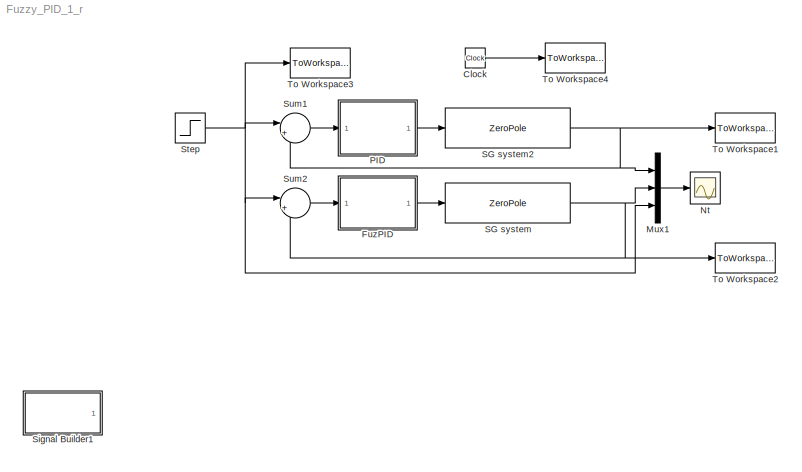
MODEL Fuzzy_PID_1_r
KIND model
BLOCK [Clock] Clock
  Decimation = 10
  SID = 1
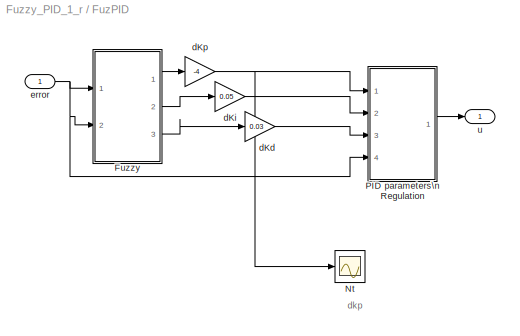
BLOCK [SubSystem] FuzPID
  FunctionWithSeparateData = off
  MaskCallbackString = |||||||
  MaskDisplay = disp('Fuzzy PID')
  MaskEnableString = on,on,on,on,on,on,on,on
  MaskHideContents = off
  MaskIconFrame = on
  MaskIconOpaque = on
  MaskIconRotate = none
  MaskIconUnits = autoscale
  MaskPortRotate = default
  MaskPromptString = Proportional(Kp)|Integral(Ki)|Derivative(Kd)|DeltaProportional(dKp)|DeltaIntegral(dKi)|DeltaDerivative(dKd)|factor of error|factor of de/dt
  MaskStyleString = edit,edit,edit,edit,edit,edit,edit,edit
  MaskToolTipString = on,on,on,on,on,on,on,on
  MaskTunableValueString = on,on,on,on,on,on,on,on
  MaskValueString = 2.5|1.5|0|0.4|0.2|0|0|0.1
  MaskVariables = Kp=@1;Ki=@2;Kd=@3;dKp=@4;dKi=@5;dKd=@6;Ke=@7;Kec=@8;
  MaskVisibilityString = on,on,on,on,on,on,on,on
  MinAlgLoopOccurrences = off
  Opaque = off
  Ports = [1, 1]
  PropExecContextOutsideSubsystem = off
  RTWSystemCode = Auto
  RequestExecContextInheritance = off
  SID = 2
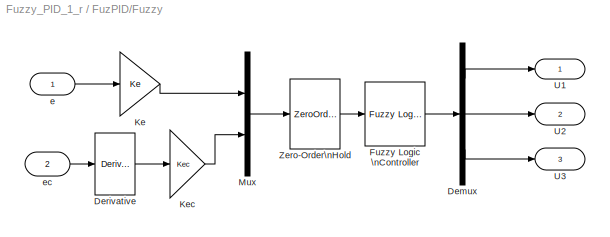
BLOCK [SubSystem] FuzPID/Fuzzy
  FunctionWithSeparateData = off
  MaskCallbackString = |
  MaskDescription = Fuzzy Bolck
  MaskDisplay = disp('Fuzzy')
  MaskEnableString = on,on
  MaskHideContents = off
  MaskIconFrame = on
  MaskIconOpaque = on
  MaskIconRotate = none
  MaskIconUnits = autoscale
  MaskPortRotate = default
  MaskPromptString = factor of error|factor of de/dt
  MaskStyleString = edit,edit
  MaskToolTipString = on,on
  MaskTunableValueString = on,on
  MaskValueString = Ke|Kec
  MaskVariables = Ke=@1;Kec=@2;
  MaskVisibilityString = on,on
  MinAlgLoopOccurrences = off
  Opaque = off
  Ports = [2, 3]
  PropExecContextOutsideSubsystem = off
  RTWSystemCode = Auto
  RequestExecContextInheritance = off
  SID = 4
BLOCK [Demux] FuzPID/Fuzzy/Demux
  DisplayOption = bar
  Outputs = 3
  Ports = [1, 3]
  SID = 7
BLOCK [Derivative] FuzPID/Fuzzy/Derivative
  SID = 8
BLOCK [Reference] FuzPID/Fuzzy/Fuzzy Logic \nController  REF=fuzblock/Fuzzy Logic \nController  (lib defined in mdl_858b3b3e7478)
  FunctionWithSeparateData = off
  GeneratePreprocessorConditionals = off
  Ports = [1, 1]
  RTWMemSecDataConstants = Inherit from model
  RTWMemSecDataInternal = Inherit from model
  RTWMemSecDataParameters = Inherit from model
  RTWMemSecFuncExecute = Inherit from model
  RTWMemSecFuncInitTerm = Inherit from model
  SID = 9
  ShowPortLabels = FromPortIcon
  SourceBlock = fuzblock/Fuzzy Logic \nController
  SourceType = FIS
  SystemSampleTime = -1
  fis = fuzzyPID
BLOCK [Gain] FuzPID/Fuzzy/Ke
  Gain = Ke
  OutDataTypeStr = Inherit: Inherit via internal rule
  ParamDataTypeStr = Inherit: Inherit via internal rule
  SID = 10
  SaturateOnIntegerOverflow = off
BLOCK [Gain] FuzPID/Fuzzy/Kec
  Gain = Kec
  OutDataTypeStr = Inherit: Inherit via internal rule
  ParamDataTypeStr = Inherit: Inherit via internal rule
  SID = 11
  SaturateOnIntegerOverflow = off
BLOCK [Mux] FuzPID/Fuzzy/Mux
  DisplayOption = bar
  Inputs = 2
  Ports = [2, 1]
  SID = 12
BLOCK [Outport] FuzPID/Fuzzy/U1
  IconDisplay = Port number
  SID = 14
BLOCK [Outport] FuzPID/Fuzzy/U2
  IconDisplay = Port number
  Port = 2
  SID = 15
BLOCK [Outport] FuzPID/Fuzzy/U3
  IconDisplay = Port number
  Port = 3
  SID = 16
BLOCK [ZeroOrderHold] FuzPID/Fuzzy/Zero-Order\nHold
  SID = 13
  SampleTime = 0.005
BLOCK [Inport] FuzPID/Fuzzy/e
  IconDisplay = Port number
  SID = 5
BLOCK [Inport] FuzPID/Fuzzy/ec
  IconDisplay = Port number
  Port = 2
  SID = 6
BLOCK [Scope] FuzPID/Nt
  DataFormat = StructureWithTime
  Floating = off
  LimitDataPoints = off
  NumInputPorts = 1
  Ports = [1]
  SID = 62
  SampleTime = 0
  SaveName = ScopeData1
  TimeRange = 0.5
  YMax = 0.25
  YMin = -1.75
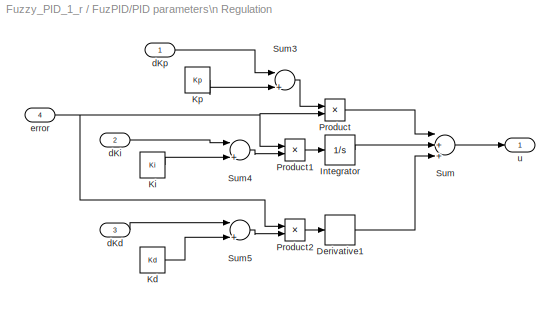
BLOCK [SubSystem] FuzPID/PID parameters\n Regulation
  FunctionWithSeparateData = off
  MaskCallbackString = ||
  MaskDisplay = disp('PID\\nRegulation')
  MaskEnableString = on,on,on
  MaskHideContents = off
  MaskIconFrame = on
  MaskIconOpaque = on
  MaskIconRotate = none
  MaskIconUnits = autoscale
  MaskPortRotate = default
  MaskPromptString = Proportional(Kp)|Integral(Ki)|Derivative(Kd)
  MaskStyleString = edit,edit,edit
  MaskToolTipString = on,on,on
  MaskTunableValueString = on,on,on
  MaskValueString = Kp|Ki|Kd
  MaskVariables = Kp=@1;Ki=@2;Kd=@3;
  MaskVisibilityString = on,on,on
  MinAlgLoopOccurrences = off
  Opaque = off
  Ports = [4, 1]
  PropExecContextOutsideSubsystem = off
  RTWSystemCode = Auto
  RequestExecContextInheritance = off
  SID = 17
BLOCK [Derivative] FuzPID/PID parameters\n Regulation/Derivative1
  SID = 22
BLOCK [Integrator] FuzPID/PID parameters\n Regulation/Integrator
  Ports = [1, 1]
  SID = 23
BLOCK [Constant] FuzPID/PID parameters\n Regulation/Kd
  SID = 24
  Value = Kd
BLOCK [Constant] FuzPID/PID parameters\n Regulation/Ki
  SID = 25
  Value = Ki
BLOCK [Constant] FuzPID/PID parameters\n Regulation/Kp
  SID = 26
  Value = Kp
BLOCK [Product] FuzPID/PID parameters\n Regulation/Product
  InputSameDT = off
  OutDataTypeStr = Inherit: Inherit via internal rule
  Ports = [2, 1]
  SID = 27
  SaturateOnIntegerOverflow = off
BLOCK [Product] FuzPID/PID parameters\n Regulation/Product1
  InputSameDT = off
  OutDataTypeStr = Inherit: Inherit via internal rule
  Ports = [2, 1]
  SID = 28
  SaturateOnIntegerOverflow = off
BLOCK [Product] FuzPID/PID parameters\n Regulation/Product2
  InputSameDT = off
  OutDataTypeStr = Inherit: Inherit via internal rule
  Ports = [2, 1]
  SID = 29
  SaturateOnIntegerOverflow = off
BLOCK [Sum] FuzPID/PID parameters\n Regulation/Sum
  InputSameDT = off
  Inputs = |+++
  OutDataTypeStr = Inherit: Inherit via internal rule
  Ports = [3, 1]
  SID = 30
  SaturateOnIntegerOverflow = off
BLOCK [Sum] FuzPID/PID parameters\n Regulation/Sum3
  InputSameDT = off
  Inputs = |++
  OutDataTypeStr = Inherit: Inherit via internal rule
  Ports = [2, 1]
  SID = 31
  SaturateOnIntegerOverflow = off
BLOCK [Sum] FuzPID/PID parameters\n Regulation/Sum4
  InputSameDT = off
  Inputs = |++
  OutDataTypeStr = Inherit: Inherit via internal rule
  Ports = [2, 1]
  SID = 32
  SaturateOnIntegerOverflow = off
BLOCK [Sum] FuzPID/PID parameters\n Regulation/Sum5
  InputSameDT = off
  Inputs = |++
  OutDataTypeStr = Inherit: Inherit via internal rule
  Ports = [2, 1]
  SID = 33
  SaturateOnIntegerOverflow = off
BLOCK [Inport] FuzPID/PID parameters\n Regulation/dKd
  IconDisplay = Port number
  Port = 3
  SID = 20
BLOCK [Inport] FuzPID/PID parameters\n Regulation/dKi
  IconDisplay = Port number
  Port = 2
  SID = 19
BLOCK [Inport] FuzPID/PID parameters\n Regulation/dKp
  IconDisplay = Port number
  SID = 18
BLOCK [Inport] FuzPID/PID parameters\n Regulation/error
  IconDisplay = Port number
  Port = 4
  SID = 21
BLOCK [Outport] FuzPID/PID parameters\n Regulation/u
  IconDisplay = Port number
  SID = 34
BLOCK [Gain] FuzPID/dKd
  Gain = 0.03
  OutDataTypeStr = Inherit: Inherit via internal rule
  ParamDataTypeStr = Inherit: Inherit via internal rule
  SID = 35
  SaturateOnIntegerOverflow = off
BLOCK [Gain] FuzPID/dKi
  Gain = 0.05
  OutDataTypeStr = Inherit: Inherit via internal rule
  ParamDataTypeStr = Inherit: Inherit via internal rule
  SID = 36
  SaturateOnIntegerOverflow = off
BLOCK [Gain] FuzPID/dKp
  Gain = -4
  OutDataTypeStr = Inherit: Inherit via internal rule
  ParamDataTypeStr = Inherit: Inherit via internal rule
  SID = 37
  SaturateOnIntegerOverflow = off
BLOCK [Inport] FuzPID/error
  IconDisplay = Port number
  SID = 3
BLOCK [Outport] FuzPID/u
  IconDisplay = Port number
  SID = 38
BLOCK [Mux] Mux1
  DisplayOption = bar
  Inputs = 3
  Ports = [3, 1]
  SID = 39
BLOCK [Scope] Nt
  DataFormat = StructureWithTime
  Floating = off
  LimitDataPoints = off
  NumInputPorts = 1
  Ports = [1]
  SID = 40
  SampleTime = 0
  TimeRange = 1
  YMax = 7.5
  YMin = -0.5
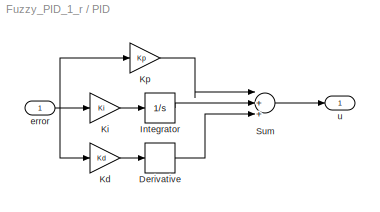
BLOCK [SubSystem] PID
  FunctionWithSeparateData = off
  MaskCallbackString = ||
  MaskDescription = Traditonal PID controller with three parameters:Proportional(Kp),Integral(Ki) and Derivative(Kd)
  MaskDisplay = disp('PID Controller')
  MaskEnableString = on,on,on
  MaskHideContents = off
  MaskIconFrame = on
  MaskIconOpaque = on
  MaskIconRotate = none
  MaskIconUnits = autoscale
  MaskPortRotate = default
  MaskPromptString = Proportional(Kp)|Integral(Ki)|Derivative(Kd)
  MaskStyleString = edit,edit,edit
  MaskToolTipString = on,on,on
  MaskTunableValueString = on,on,on
  MaskValueString = 2.5|1.5|0
  MaskVariables = Kp=@1;Ki=@2;Kd=@3;
  MaskVisibilityString = on,on,on
  MinAlgLoopOccurrences = off
  Opaque = off
  Ports = [1, 1]
  PropExecContextOutsideSubsystem = off
  RTWSystemCode = Auto
  RequestExecContextInheritance = off
  SID = 41
BLOCK [Derivative] PID/Derivative
  SID = 43
BLOCK [Integrator] PID/Integrator
  Ports = [1, 1]
  SID = 44
BLOCK [Gain] PID/Kd
  Gain = Kd
  OutDataTypeStr = Inherit: Inherit via internal rule
  ParamDataTypeStr = Inherit: Inherit via internal rule
  SID = 45
  SaturateOnIntegerOverflow = off
BLOCK [Gain] PID/Ki
  Gain = Ki
  OutDataTypeStr = Inherit: Inherit via internal rule
  ParamDataTypeStr = Inherit: Inherit via internal rule
  SID = 46
  SaturateOnIntegerOverflow = off
BLOCK [Gain] PID/Kp
  Gain = Kp
  OutDataTypeStr = Inherit: Inherit via internal rule
  ParamDataTypeStr = Inherit: Inherit via internal rule
  SID = 47
  SaturateOnIntegerOverflow = off
BLOCK [Sum] PID/Sum
  InputSameDT = off
  Inputs = |+++
  OutDataTypeStr = Inherit: Inherit via internal rule
  Ports = [3, 1]
  SID = 48
  SaturateOnIntegerOverflow = off
BLOCK [Inport] PID/error
  IconDisplay = Port number
  SID = 42
BLOCK [Outport] PID/u
  IconDisplay = Port number
  SID = 49
BLOCK [ZeroPole] SG system
  Gain = 792
  Poles = [2.865 -40.235 ]
  SID = 50
  Zeros = []
BLOCK [ZeroPole] SG system2
  Gain = 792
  Poles = [-2.865 -40.235]
  SID = 51
  Zeros = []
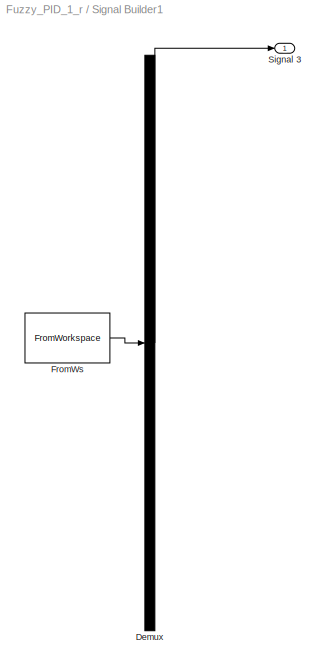
BLOCK [SubSystem] Signal Builder1
  ClipboardFcn = sigbuilder_block('clipboard');
  CloseFcn = sigbuilder_block('close');
  CopyFcn = sigbuilder_block('copy');
  DeleteFcn = sigbuilder_block('delete');
  FunctionWithSeparateData = off
  LoadFcn = sigbuilder_block('load');
  MaskCapabilities = slmaskedcaps(gcbh)
  MaskDescription = Sigbuilder GUI
  MaskDisplay = plot(0,0,100,100,[10,10,40,40,10],[80,20,20,80,80],[40,10],[50,50], [40,27,10],[65,72,56],[40,25,25,10],[28,28,43,43]);
  MaskHideContents = on
  MaskIconFrame = on
  MaskIconOpaque = off
  MaskIconRotate = port
  MaskIconUnits = autoscale
  MaskInitialization = if ~strcmp(get_param(bdroot(gcbh),'SimulationStatus'),'stopped') tuvar = sigbuilder_block('maskInit'); end
  MaskPortRotate = default
  MaskSelfModifiable = on
  MaskType = Sigbuilder block
  MinAlgLoopOccurrences = off
  ModelCloseFcn = sigbuilder_block('modelClose');
  NameChangeFcn = sigbuilder_block('namechange');
  Opaque = off
  OpenFcn = sigbuilder_block('open',[-15.75 97.5 954 496.5 ]);
  Ports = [0, 1]
  PreSaveFcn = sigbuilder_block('preSave');
  PropExecContextOutsideSubsystem = off
  RTWSystemCode = Auto
  RequestExecContextInheritance = off
  SID = 59
  StartFcn = sigbuilder_block('start');
  StopFcn = sigbuilder_block('stop');
  Tag = STV Subsys
BLOCK [Demux] Signal Builder1/Demux
  Outputs = 1
  Ports = [1, 1]
  SID = 59:1
  Tag = STV Demux
BLOCK [FromWorkspace] Signal Builder1/FromWs
  SID = 59:2
  SampleTime = 0
  SigBuilderData = DataTag0
  Tag = STV FromWs
  VariableName = tuvar
  VnvData = DataTag1
  ZeroCross = on
BLOCK [Outport] Signal Builder1/Signal 3
  IconDisplay = Port number
  SID = 59:3
  Tag = STV Outport
BLOCK [Step] Step
  SID = 60
  SampleTime = 0
  Time = 0
BLOCK [Sum] Sum1
  IconShape = round
  InputSameDT = off
  Inputs = |+-
  OutDataTypeStr = Inherit: Inherit via internal rule
  Ports = [2, 1]
  SID = 53
  SaturateOnIntegerOverflow = off
BLOCK [Sum] Sum2
  IconShape = round
  InputSameDT = off
  Inputs = |+-
  OutDataTypeStr = Inherit: Inherit via internal rule
  Ports = [2, 1]
  SID = 54
  SaturateOnIntegerOverflow = off
BLOCK [ToWorkspace] To Workspace1
  MaxDataPoints = inf
  Ports = [1]
  SID = 55
  SampleTime = 0.0001
  SaveFormat = Array
  VariableName = Nt1
BLOCK [ToWorkspace] To Workspace2
  MaxDataPoints = inf
  Ports = [1]
  SID = 56
  SampleTime = 0.0001
  SaveFormat = Array
  VariableName = Nt2
BLOCK [ToWorkspace] To Workspace3
  MaxDataPoints = inf
  Ports = [1]
  SID = 57
  SampleTime = 0.0001
  SaveFormat = Array
  VariableName = Nref
BLOCK [ToWorkspace] To Workspace4
  MaxDataPoints = inf
  Ports = [1]
  SID = 58
  SampleTime = 0.0001
  SaveFormat = Array
  VariableName = t
ANNOTATION FuzPID: dkp
LINE Clock:1 -> To Workspace4:1
LINE FuzPID/Fuzzy/Demux:1 -> FuzPID/Fuzzy/U1:1
LINE FuzPID/Fuzzy/Demux:2 -> FuzPID/Fuzzy/U2:1
LINE FuzPID/Fuzzy/Demux:3 -> FuzPID/Fuzzy/U3:1
LINE FuzPID/Fuzzy/Derivative:1 -> FuzPID/Fuzzy/Kec:1
LINE FuzPID/Fuzzy/Fuzzy Logic \nController:1 -> FuzPID/Fuzzy/Demux:1
LINE FuzPID/Fuzzy/Ke:1 -> FuzPID/Fuzzy/Mux:1
LINE FuzPID/Fuzzy/Kec:1 -> FuzPID/Fuzzy/Mux:2
LINE FuzPID/Fuzzy/Mux:1 -> FuzPID/Fuzzy/Zero-Order\nHold:1
LINE FuzPID/Fuzzy/Zero-Order\nHold:1 -> FuzPID/Fuzzy/Fuzzy Logic \nController:1
LINE FuzPID/Fuzzy/e:1 -> FuzPID/Fuzzy/Ke:1
LINE FuzPID/Fuzzy/ec:1 -> FuzPID/Fuzzy/Derivative:1
LINE FuzPID/Fuzzy:1 -> FuzPID/dKp:1
LINE FuzPID/Fuzzy:2 -> FuzPID/dKi:1
LINE FuzPID/Fuzzy:3 -> FuzPID/dKd:1
LINE FuzPID/PID parameters\n Regulation/Derivative1:1 -> FuzPID/PID parameters\n Regulation/Sum:3
LINE FuzPID/PID parameters\n Regulation/Integrator:1 -> FuzPID/PID parameters\n Regulation/Sum:2
LINE FuzPID/PID parameters\n Regulation/Kd:1 -> FuzPID/PID parameters\n Regulation/Sum5:2
LINE FuzPID/PID parameters\n Regulation/Ki:1 -> FuzPID/PID parameters\n Regulation/Sum4:2
LINE FuzPID/PID parameters\n Regulation/Kp:1 -> FuzPID/PID parameters\n Regulation/Sum3:2
LINE FuzPID/PID parameters\n Regulation/Product1:1 -> FuzPID/PID parameters\n Regulation/Integrator:1
LINE FuzPID/PID parameters\n Regulation/Product2:1 -> FuzPID/PID parameters\n Regulation/Derivative1:1
LINE FuzPID/PID parameters\n Regulation/Product:1 -> FuzPID/PID parameters\n Regulation/Sum:1
LINE FuzPID/PID parameters\n Regulation/Sum3:1 -> FuzPID/PID parameters\n Regulation/Product:1
LINE FuzPID/PID parameters\n Regulation/Sum4:1 -> FuzPID/PID parameters\n Regulation/Product1:2
LINE FuzPID/PID parameters\n Regulation/Sum5:1 -> FuzPID/PID parameters\n Regulation/Product2:2
LINE FuzPID/PID parameters\n Regulation/Sum:1 -> FuzPID/PID parameters\n Regulation/u:1
LINE FuzPID/PID parameters\n Regulation/dKd:1 -> FuzPID/PID parameters\n Regulation/Sum5:1
LINE FuzPID/PID parameters\n Regulation/dKi:1 -> FuzPID/PID parameters\n Regulation/Sum4:1
LINE FuzPID/PID parameters\n Regulation/dKp:1 -> FuzPID/PID parameters\n Regulation/Sum3:1
NET FuzPID/PID parameters\n Regulation/error:1 -> FuzPID/PID parameters\n Regulation/Product1:1, FuzPID/PID parameters\n Regulation/Product2:1, FuzPID/PID parameters\n Regulation/Product:2
LINE FuzPID/PID parameters\n Regulation:1 -> FuzPID/u:1
LINE FuzPID/dKd:1 -> FuzPID/PID parameters\n Regulation:3
LINE FuzPID/dKi:1 -> FuzPID/PID parameters\n Regulation:2
NET FuzPID/dKp:1 -> FuzPID/Nt:1, FuzPID/PID parameters\n Regulation:1
NET FuzPID/error:1 -> FuzPID/Fuzzy:1, FuzPID/Fuzzy:2, FuzPID/PID parameters\n Regulation:4
LINE FuzPID:1 -> SG system:1
LINE Mux1:1 -> Nt:1
LINE PID/Derivative:1 -> PID/Sum:3
LINE PID/Integrator:1 -> PID/Sum:2
LINE PID/Kd:1 -> PID/Derivative:1
LINE PID/Ki:1 -> PID/Integrator:1
LINE PID/Kp:1 -> PID/Sum:1
LINE PID/Sum:1 -> PID/u:1
NET PID/error:1 -> PID/Kd:1, PID/Ki:1, PID/Kp:1
LINE PID:1 -> SG system2:1
NET SG system2:1 -> Mux1:1, Sum1:2, To Workspace1:1
NET SG system:1 -> Mux1:2, Sum2:2, To Workspace2:1
LINE Signal Builder1/Demux:1 -> Signal Builder1/Signal 3:1
LINE Signal Builder1/FromWs:1 -> Signal Builder1/Demux:1
NET Step:1 -> Mux1:3, Sum1:1, Sum2:1, To Workspace3:1
LINE Sum1:1 -> PID:1
LINE Sum2:1 -> FuzPID:1
note: NET lines group one-source signal fan-out (src -> all destinations, sorted); 1:1 wires keep LINE
